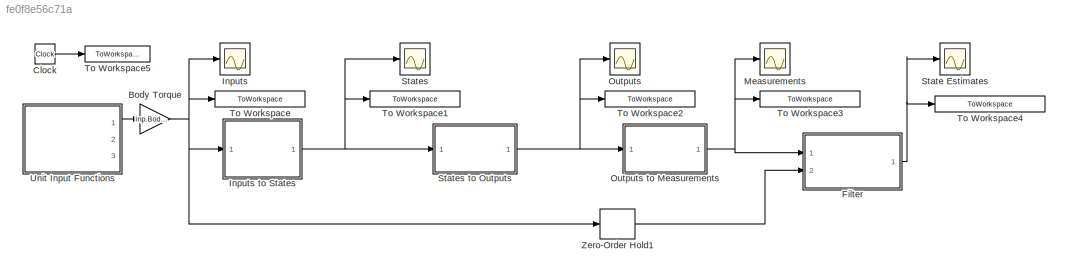
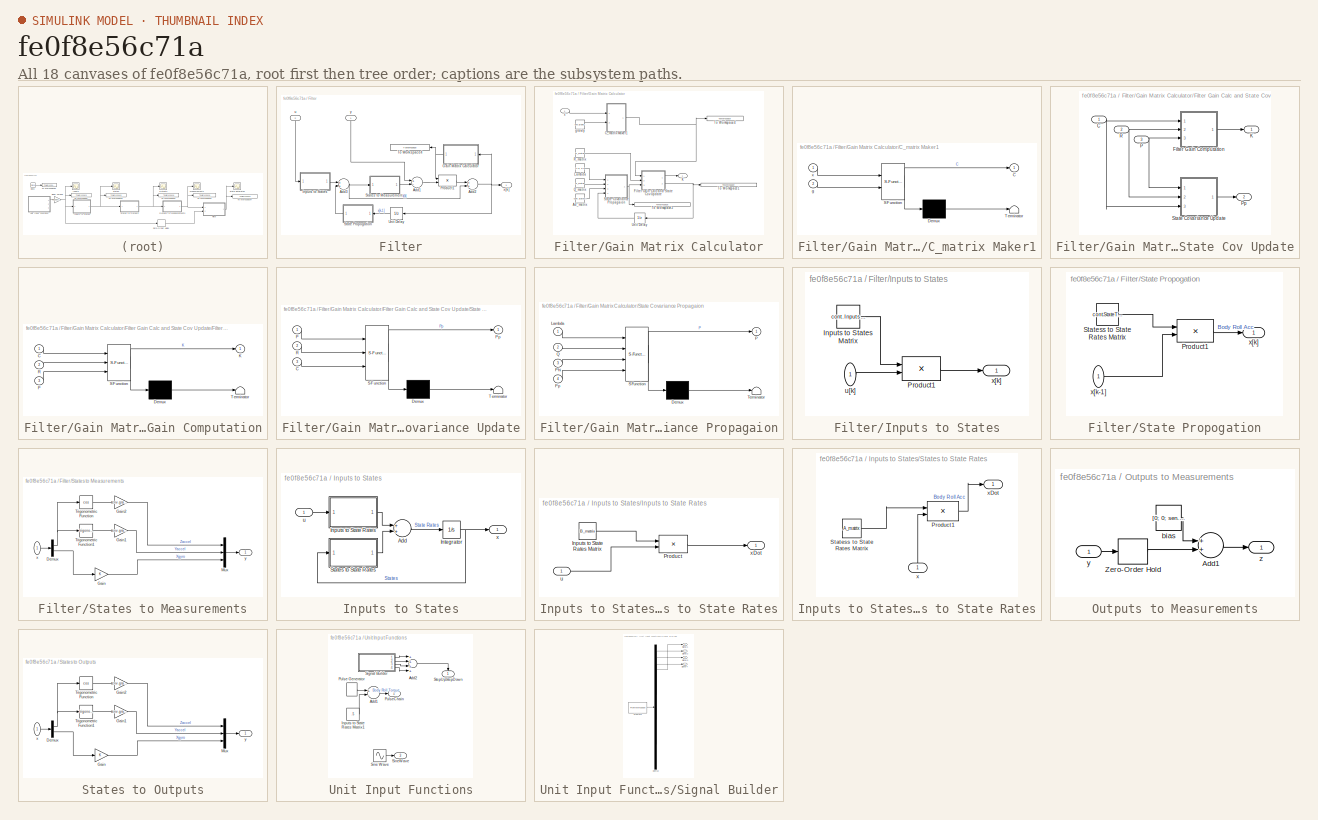
[diagram: thumbnail index - all 18 canvases of the model, root first then tree order]
MODEL slx_fe0f8e56c71a
KIND model
BLOCK [Gain] Body Torque
  Gain = inp.BodyRollTorqueMag
  OutDataTypeStr = Inherit: Inherit via internal rule
  ParamDataTypeStr = Inherit: Inherit via internal rule
  SaturateOnIntegerOverflow = off
BLOCK [Clock] Clock
BLOCK [SubSystem] Filter
  FunctionWithSeparateData = off
  MaskHideContents = off
  MinAlgLoopOccurrences = off
  Opaque = off
  Ports = [2, 1]
  PropExecContextOutsideSubsystem = off
  RTWSystemCode = Auto
  RequestExecContextInheritance = off
BLOCK [Sum] Filter/Add1
  InputSameDT = off
  Inputs = +-
  OutDataTypeStr = Inherit: Inherit via internal rule
  Ports = [2, 1]
  SampleTime = cont.LoopPeriod
  SaturateOnIntegerOverflow = off
BLOCK [Sum] Filter/Add2
  InputSameDT = off
  OutDataTypeStr = Inherit: Inherit via internal rule
  Ports = [2, 1]
  SampleTime = cont.LoopPeriod
  SaturateOnIntegerOverflow = off
BLOCK [Sum] Filter/Add3
  InputSameDT = off
  OutDataTypeStr = Inherit: Inherit via internal rule
  Ports = [2, 1]
  SampleTime = cont.LoopPeriod
  SaturateOnIntegerOverflow = off
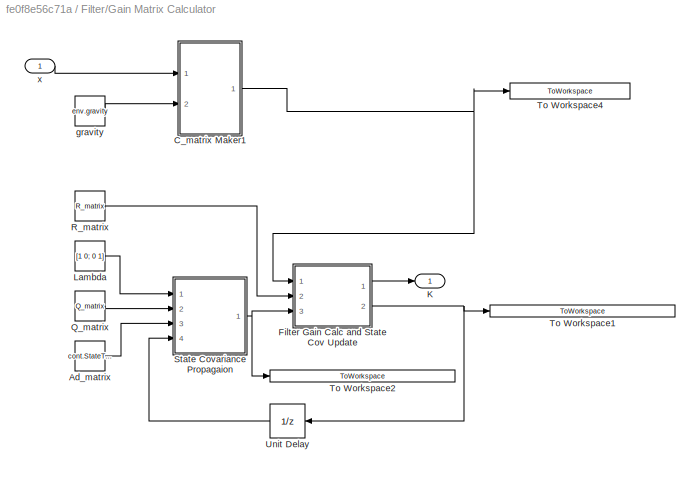
BLOCK [SubSystem] Filter/Gain Matrix Calculator
  FunctionWithSeparateData = off
  MaskHideContents = off
  MinAlgLoopOccurrences = off
  Opaque = off
  Ports = [1, 1]
  PropExecContextOutsideSubsystem = off
  RTWSystemCode = Auto
  RequestExecContextInheritance = off
BLOCK [Constant] Filter/Gain Matrix Calculator/Ad_matrix
  SampleTime = cont.LoopPeriod
  Value = cont.StateToStateRatesDiscrete
BLOCK [SubSystem] Filter/Gain Matrix Calculator/C_matrix Maker1
  ErrorFcn = Stateflow.Translate.translate
  FunctionWithSeparateData = off
  MaskHideContents = off
  MinAlgLoopOccurrences = off
  Opaque = off
  PermitHierarchicalResolution = ExplicitOnly
  Ports = [2, 1]
  PropExecContextOutsideSubsystem = off
  RTWSystemCode = Auto
  RequestExecContextInheritance = off
  SFBlockType = MATLAB Function
  TreatAsAtomicUnit = on
BLOCK [Demux] Filter/Gain Matrix Calculator/C_matrix Maker1/ Demux 
  Outputs = 1
  Ports = [1, 1]
BLOCK [S-Function] Filter/Gain Matrix Calculator/C_matrix Maker1/ SFunction 
  EnableBusSupport = on
  FunctionName = sf_sfun
  PortCounts = [2 2]
  Ports = [2, 2]
  Tag = Stateflow S-Function RollOnlySimulation 4
BLOCK [Terminator] Filter/Gain Matrix Calculator/C_matrix Maker1/ Terminator 
BLOCK [Outport] Filter/Gain Matrix Calculator/C_matrix Maker1/C
  IconDisplay = Port number
BLOCK [Inport] Filter/Gain Matrix Calculator/C_matrix Maker1/g
  IconDisplay = Port number
  Port = 2
BLOCK [Inport] Filter/Gain Matrix Calculator/C_matrix Maker1/x
  IconDisplay = Port number
BLOCK [SubSystem] Filter/Gain Matrix Calculator/Filter Gain Calc and State Cov Update
  FunctionWithSeparateData = off
  MaskHideContents = off
  MinAlgLoopOccurrences = off
  Opaque = off
  Ports = [3, 2]
  PropExecContextOutsideSubsystem = off
  RTWSystemCode = Auto
  RequestExecContextInheritance = off
BLOCK [Inport] Filter/Gain Matrix Calculator/Filter Gain Calc and State Cov Update/C
  IconDisplay = Port number
  PortDimensions = [3 2]
BLOCK [SubSystem] Filter/Gain Matrix Calculator/Filter Gain Calc and State Cov Update/Filter Gain Computation
  ErrorFcn = Stateflow.Translate.translate
  FunctionWithSeparateData = off
  MaskHideContents = off
  MinAlgLoopOccurrences = off
  Opaque = off
  PermitHierarchicalResolution = ExplicitOnly
  Ports = [3, 1]
  PropExecContextOutsideSubsystem = off
  RTWSystemCode = Auto
  RequestExecContextInheritance = off
  SFBlockType = MATLAB Function
  TreatAsAtomicUnit = on
BLOCK [Demux] Filter/Gain Matrix Calculator/Filter Gain Calc and State Cov Update/Filter Gain Computation/ Demux 
  Outputs = 1
  Ports = [1, 1]
BLOCK [S-Function] Filter/Gain Matrix Calculator/Filter Gain Calc and State Cov Update/Filter Gain Computation/ SFunction 
  EnableBusSupport = on
  FunctionName = sf_sfun
  PortCounts = [3 2]
  Ports = [3, 2]
  Tag = Stateflow S-Function RollOnlySimulation 2
BLOCK [Terminator] Filter/Gain Matrix Calculator/Filter Gain Calc and State Cov Update/Filter Gain Computation/ Terminator 
BLOCK [Inport] Filter/Gain Matrix Calculator/Filter Gain Calc and State Cov Update/Filter Gain Computation/C
  IconDisplay = Port number
BLOCK [Outport] Filter/Gain Matrix Calculator/Filter Gain Calc and State Cov Update/Filter Gain Computation/K
  IconDisplay = Port number
BLOCK [Inport] Filter/Gain Matrix Calculator/Filter Gain Calc and State Cov Update/Filter Gain Computation/P
  IconDisplay = Port number
  Port = 3
BLOCK [Inport] Filter/Gain Matrix Calculator/Filter Gain Calc and State Cov Update/Filter Gain Computation/R
  IconDisplay = Port number
  Port = 2
BLOCK [Outport] Filter/Gain Matrix Calculator/Filter Gain Calc and State Cov Update/K
  IconDisplay = Port number
BLOCK [Inport] Filter/Gain Matrix Calculator/Filter Gain Calc and State Cov Update/P
  IconDisplay = Port number
  Port = 3
BLOCK [Outport] Filter/Gain Matrix Calculator/Filter Gain Calc and State Cov Update/Pp
  IconDisplay = Port number
  Port = 2
BLOCK [Inport] Filter/Gain Matrix Calculator/Filter Gain Calc and State Cov Update/R
  IconDisplay = Port number
  Port = 2
BLOCK [SubSystem] Filter/Gain Matrix Calculator/Filter Gain Calc and State Cov Update/State Covariance Update
  ErrorFcn = Stateflow.Translate.translate
  FunctionWithSeparateData = off
  MaskHideContents = off
  MinAlgLoopOccurrences = off
  Opaque = off
  PermitHierarchicalResolution = ExplicitOnly
  Ports = [3, 1]
  PropExecContextOutsideSubsystem = off
  RTWSystemCode = Auto
  RequestExecContextInheritance = off
  SFBlockType = MATLAB Function
  TreatAsAtomicUnit = on
BLOCK [Demux] Filter/Gain Matrix Calculator/Filter Gain Calc and State Cov Update/State Covariance Update/ Demux 
  Outputs = 1
  Ports = [1, 1]
BLOCK [S-Function] Filter/Gain Matrix Calculator/Filter Gain Calc and State Cov Update/State Covariance Update/ SFunction 
  EnableBusSupport = on
  FunctionName = sf_sfun
  PortCounts = [3 2]
  Ports = [3, 2]
  Tag = Stateflow S-Function RollOnlySimulation 3
BLOCK [Terminator] Filter/Gain Matrix Calculator/Filter Gain Calc and State Cov Update/State Covariance Update/ Terminator 
BLOCK [Inport] Filter/Gain Matrix Calculator/Filter Gain Calc and State Cov Update/State Covariance Update/C
  IconDisplay = Port number
  Port = 3
BLOCK [Inport] Filter/Gain Matrix Calculator/Filter Gain Calc and State Cov Update/State Covariance Update/P
  IconDisplay = Port number
BLOCK [Outport] Filter/Gain Matrix Calculator/Filter Gain Calc and State Cov Update/State Covariance Update/Pp
  IconDisplay = Port number
BLOCK [Inport] Filter/Gain Matrix Calculator/Filter Gain Calc and State Cov Update/State Covariance Update/R
  IconDisplay = Port number
  Port = 2
BLOCK [Outport] Filter/Gain Matrix Calculator/K
  IconDisplay = Port number
BLOCK [Constant] Filter/Gain Matrix Calculator/Lambda
  SampleTime = cont.LoopPeriod
  Value = [1 0; 0 1]
BLOCK [Constant] Filter/Gain Matrix Calculator/Q_matrix
  SampleTime = cont.LoopPeriod
  Value = Q_matrix
BLOCK [Constant] Filter/Gain Matrix Calculator/R_matrix
  SampleTime = cont.LoopPeriod
  Value = R_matrix
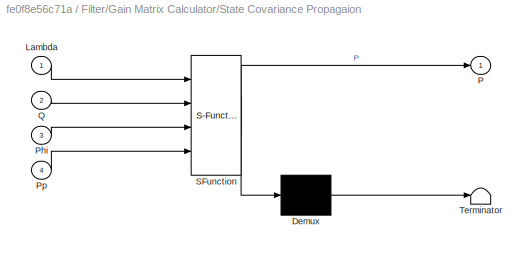
BLOCK [SubSystem] Filter/Gain Matrix Calculator/State Covariance Propagaion
  ErrorFcn = Stateflow.Translate.translate
  FunctionWithSeparateData = off
  MaskHideContents = off
  MinAlgLoopOccurrences = off
  Opaque = off
  PermitHierarchicalResolution = ExplicitOnly
  Ports = [4, 1]
  PropExecContextOutsideSubsystem = off
  RTWSystemCode = Auto
  RequestExecContextInheritance = off
  SFBlockType = MATLAB Function
  TreatAsAtomicUnit = on
BLOCK [Demux] Filter/Gain Matrix Calculator/State Covariance Propagaion/ Demux 
  Outputs = 1
  Ports = [1, 1]
BLOCK [S-Function] Filter/Gain Matrix Calculator/State Covariance Propagaion/ SFunction 
  EnableBusSupport = on
  FunctionName = sf_sfun
  PortCounts = [4 2]
  Ports = [4, 2]
  Tag = Stateflow S-Function RollOnlySimulation 1
BLOCK [Terminator] Filter/Gain Matrix Calculator/State Covariance Propagaion/ Terminator 
BLOCK [Inport] Filter/Gain Matrix Calculator/State Covariance Propagaion/Lambda
  IconDisplay = Port number
BLOCK [Outport] Filter/Gain Matrix Calculator/State Covariance Propagaion/P
  IconDisplay = Port number
BLOCK [Inport] Filter/Gain Matrix Calculator/State Covariance Propagaion/Phi
  IconDisplay = Port number
  Port = 3
BLOCK [Inport] Filter/Gain Matrix Calculator/State Covariance Propagaion/Pp
  IconDisplay = Port number
  Port = 4
BLOCK [Inport] Filter/Gain Matrix Calculator/State Covariance Propagaion/Q
  IconDisplay = Port number
  Port = 2
BLOCK [ToWorkspace] Filter/Gain Matrix Calculator/To Workspace1
  MaxDataPoints = inf
  Ports = [1]
  SampleTime = -1
  VariableName = out_UpdatedStateCovarianceMatrix
BLOCK [ToWorkspace] Filter/Gain Matrix Calculator/To Workspace2
  MaxDataPoints = inf
  Ports = [1]
  SampleTime = -1
  VariableName = out_PropagatedStateCovarianceMatrix
BLOCK [ToWorkspace] Filter/Gain Matrix Calculator/To Workspace4
  MaxDataPoints = inf
  Ports = [1]
  SampleTime = -1
  VariableName = out_LinearizedCmatrix
BLOCK [UnitDelay] Filter/Gain Matrix Calculator/Unit Delay
  InitialCondition = [0.001 0; 0 0.001]
  InputProcessing = Elements as channels (sample based)
  SampleTime = cont.LoopPeriod
BLOCK [Constant] Filter/Gain Matrix Calculator/gravity
  SampleTime = cont.LoopPeriod
  Value = env.gravity
BLOCK [Inport] Filter/Gain Matrix Calculator/x
  IconDisplay = Port number
BLOCK [SubSystem] Filter/Inputs to States
  FunctionWithSeparateData = off
  MaskHideContents = off
  MinAlgLoopOccurrences = off
  Opaque = off
  Ports = [1, 1]
  PropExecContextOutsideSubsystem = off
  RTWSystemCode = Auto
  RequestExecContextInheritance = off
BLOCK [Constant] Filter/Inputs to States/Inputs to States Matrix
  SampleTime = cont.LoopPeriod
  Value = cont.InputsToStatesDiscrete
BLOCK [Product] Filter/Inputs to States/Product1
  InputSameDT = off
  Multiplication = Matrix(*)
  OutDataTypeStr = Inherit: Inherit via internal rule
  Ports = [2, 1]
  SaturateOnIntegerOverflow = off
BLOCK [Inport] Filter/Inputs to States/u[k]
  IconDisplay = Port number
BLOCK [Outport] Filter/Inputs to States/x[k]
  IconDisplay = Port number
BLOCK [Product] Filter/Product1
  InputSameDT = off
  Multiplication = Matrix(*)
  OutDataTypeStr = Inherit: Inherit via internal rule
  Ports = [2, 1]
  SaturateOnIntegerOverflow = off
BLOCK [SubSystem] Filter/State Propogation
  FunctionWithSeparateData = off
  MaskHideContents = off
  MinAlgLoopOccurrences = off
  Opaque = off
  Ports = [1, 1]
  PropExecContextOutsideSubsystem = off
  RTWSystemCode = Auto
  RequestExecContextInheritance = off
BLOCK [Product] Filter/State Propogation/Product1
  InputSameDT = off
  Multiplication = Matrix(*)
  OutDataTypeStr = Inherit: Inherit via internal rule
  Ports = [2, 1]
  SaturateOnIntegerOverflow = off
BLOCK [Constant] Filter/State Propogation/Statess to State Rates Matrix
  SampleTime = cont.LoopPeriod
  Value = cont.StateToStateRatesDiscrete
BLOCK [Inport] Filter/State Propogation/x[k-1]
  IconDisplay = Port number
BLOCK [Outport] Filter/State Propogation/x[k]
  IconDisplay = Port number
BLOCK [SubSystem] Filter/States to Measurements
  FunctionWithSeparateData = off
  MaskHideContents = off
  MinAlgLoopOccurrences = off
  Opaque = off
  Ports = [1, 1]
  PropExecContextOutsideSubsystem = off
  RTWSystemCode = Auto
  RequestExecContextInheritance = off
BLOCK [Demux] Filter/States to Measurements/Demux
  DisplayOption = bar
  Outputs = 2
  Ports = [1, 2]
BLOCK [Gain] Filter/States to Measurements/Gain
  OutDataTypeStr = Inherit: Inherit via internal rule
  ParamDataTypeStr = Inherit: Inherit via internal rule
  SaturateOnIntegerOverflow = off
BLOCK [Gain] Filter/States to Measurements/Gain1
  Gain = env.gravity
  OutDataTypeStr = Inherit: Inherit via internal rule
  ParamDataTypeStr = Inherit: Inherit via internal rule
  SaturateOnIntegerOverflow = off
BLOCK [Gain] Filter/States to Measurements/Gain2
  Gain = env.gravity
  OutDataTypeStr = Inherit: Inherit via internal rule
  ParamDataTypeStr = Inherit: Inherit via internal rule
  SaturateOnIntegerOverflow = off
BLOCK [Mux] Filter/States to Measurements/Mux
  DisplayOption = bar
  Inputs = 3
  Ports = [3, 1]
BLOCK [Trigonometry] Filter/States to Measurements/Trigonometric Function
  Operator = cos
  Ports = [1, 1]
BLOCK [Trigonometry] Filter/States to Measurements/Trigonometric Function1
  Ports = [1, 1]
BLOCK [Inport] Filter/States to Measurements/x
  IconDisplay = Port number
BLOCK [Outport] Filter/States to Measurements/y
  IconDisplay = Port number
BLOCK [ToWorkspace] Filter/To Workspace4
  MaxDataPoints = inf
  Ports = [1]
  SampleTime = -1
  VariableName = out_GainMatrix
BLOCK [UnitDelay] Filter/Unit Delay
  InitialCondition = [0; 0]
  InputProcessing = Elements as channels (sample based)
  SampleTime = cont.LoopPeriod
BLOCK [Inport] Filter/u
  IconDisplay = Port number
  Port = 2
BLOCK [Outport] Filter/x[k]
  IconDisplay = Port number
BLOCK [Inport] Filter/y
  IconDisplay = Port number
BLOCK [Scope] Inputs
  DataFormat = StructureWithTime
  Floating = off
  NumInputPorts = 1
  Ports = [1]
  SampleTime = 0
  SaveName = ScopeData1
  ShowLegends = off
  TimeRange = 10
  YMax = 10
  YMin = -10
BLOCK [SubSystem] Inputs to States
  FunctionWithSeparateData = off
  MaskHideContents = off
  MinAlgLoopOccurrences = off
  Opaque = off
  Ports = [1, 1]
  PropExecContextOutsideSubsystem = off
  RTWSystemCode = Auto
  RequestExecContextInheritance = off
BLOCK [Sum] Inputs to States/Add
  InputSameDT = off
  OutDataTypeStr = Inherit: Inherit via internal rule
  Ports = [2, 1]
  SaturateOnIntegerOverflow = off
BLOCK [SubSystem] Inputs to States/Inputs to State Rates
  FunctionWithSeparateData = off
  MaskHideContents = off
  MinAlgLoopOccurrences = off
  Opaque = off
  Ports = [1, 1]
  PropExecContextOutsideSubsystem = off
  RTWSystemCode = Auto
  RequestExecContextInheritance = off
BLOCK [Constant] Inputs to States/Inputs to State Rates/Inputs to State Rates Matrix
  Value = B_matrix
BLOCK [Product] Inputs to States/Inputs to State Rates/Product
  InputSameDT = off
  Multiplication = Matrix(*)
  OutDataTypeStr = Inherit: Inherit via internal rule
  Ports = [2, 1]
  SaturateOnIntegerOverflow = off
BLOCK [Inport] Inputs to States/Inputs to State Rates/u
  IconDisplay = Port number
BLOCK [Outport] Inputs to States/Inputs to State Rates/xDot
  IconDisplay = Port number
BLOCK [Integrator] Inputs to States/Integrator
  InitialCondition = [0; 0]
  Ports = [1, 1]
BLOCK [SubSystem] Inputs to States/States to State Rates
  FunctionWithSeparateData = off
  MaskHideContents = off
  MinAlgLoopOccurrences = off
  Opaque = off
  Ports = [1, 1]
  PropExecContextOutsideSubsystem = off
  RTWSystemCode = Auto
  RequestExecContextInheritance = off
BLOCK [Product] Inputs to States/States to State Rates/Product1
  InputSameDT = off
  Multiplication = Matrix(*)
  OutDataTypeStr = Inherit: Inherit via internal rule
  Ports = [2, 1]
  SaturateOnIntegerOverflow = off
BLOCK [Constant] Inputs to States/States to State Rates/Statess to State Rates Matrix
  Value = A_matrix
BLOCK [Inport] Inputs to States/States to State Rates/x
  IconDisplay = Port number
BLOCK [Outport] Inputs to States/States to State Rates/xDot
  IconDisplay = Port number
BLOCK [Inport] Inputs to States/u
  IconDisplay = Port number
BLOCK [Outport] Inputs to States/x
  IconDisplay = Port number
BLOCK [Scope] Measurements
  DataFormat = StructureWithTime
  Floating = off
  NumInputPorts = 1
  Ports = [1]
  SampleTime = 0
  SaveName = ScopeData4
  ShowLegends = off
  TimeRange = 10
  YMax = 10
  YMin = -2
BLOCK [Scope] Outputs
  DataFormat = StructureWithTime
  Floating = off
  NumInputPorts = 1
  Ports = [1]
  SampleTime = 0
  SaveName = ScopeData2
  ShowLegends = off
  TimeRange = 10
  YMax = 10
  YMin = -2
BLOCK [SubSystem] Outputs to Measurements
  FunctionWithSeparateData = off
  MaskHideContents = off
  MinAlgLoopOccurrences = off
  Opaque = off
  Ports = [1, 1]
  PropExecContextOutsideSubsystem = off
  RTWSystemCode = Auto
  RequestExecContextInheritance = off
BLOCK [Sum] Outputs to Measurements/Add1
  InputSameDT = off
  OutDataTypeStr = Inherit: Inherit via internal rule
  Ports = [2, 1]
  SaturateOnIntegerOverflow = off
BLOCK [ZeroOrderHold] Outputs to Measurements/Zero-Order Hold
  SampleTime = cont.LoopPeriod
BLOCK [Constant] Outputs to Measurements/bias
  SampleTime = cont.LoopPeriod
  Value = [0; 0; sen.gx.bias]
BLOCK [Inport] Outputs to Measurements/y
  IconDisplay = Port number
BLOCK [Outport] Outputs to Measurements/z
  IconDisplay = Port number
BLOCK [Scope] State Estimates
  DataFormat = StructureWithTime
  Floating = off
  NumInputPorts = 1
  Ports = [1]
  SampleTime = 0
  SaveName = ScopeData3
  ShowLegends = off
  TimeRange = 10
  YMax = 0.6000000000000001
  YMin = -0.8
BLOCK [Scope] States
  DataFormat = StructureWithTime
  Floating = off
  NumInputPorts = 1
  Ports = [1]
  SampleTime = 0
  ShowLegends = off
  TimeRange = 10
  YMax = 0.5
  YMin = -0.5
BLOCK [SubSystem] States to Outputs
  FunctionWithSeparateData = off
  MaskHideContents = off
  MinAlgLoopOccurrences = off
  Opaque = off
  Ports = [1, 1]
  PropExecContextOutsideSubsystem = off
  RTWSystemCode = Auto
  RequestExecContextInheritance = off
BLOCK [Demux] States to Outputs/Demux
  DisplayOption = bar
  Outputs = 2
  Ports = [1, 2]
BLOCK [Gain] States to Outputs/Gain
  OutDataTypeStr = Inherit: Inherit via internal rule
  ParamDataTypeStr = Inherit: Inherit via internal rule
  SaturateOnIntegerOverflow = off
BLOCK [Gain] States to Outputs/Gain1
  Gain = env.gravity
  OutDataTypeStr = Inherit: Inherit via internal rule
  ParamDataTypeStr = Inherit: Inherit via internal rule
  SaturateOnIntegerOverflow = off
BLOCK [Gain] States to Outputs/Gain2
  Gain = env.gravity
  OutDataTypeStr = Inherit: Inherit via internal rule
  ParamDataTypeStr = Inherit: Inherit via internal rule
  SaturateOnIntegerOverflow = off
BLOCK [Mux] States to Outputs/Mux
  DisplayOption = bar
  Inputs = 3
  Ports = [3, 1]
BLOCK [Trigonometry] States to Outputs/Trigonometric Function
  Operator = cos
  Ports = [1, 1]
BLOCK [Trigonometry] States to Outputs/Trigonometric Function1
  Ports = [1, 1]
BLOCK [Inport] States to Outputs/x
  IconDisplay = Port number
BLOCK [Outport] States to Outputs/y
  IconDisplay = Port number
BLOCK [ToWorkspace] To Workspace
  MaxDataPoints = inf
  Ports = [1]
  SampleTime = cont.LoopPeriod
  VariableName = out_Inputs
BLOCK [ToWorkspace] To Workspace1
  MaxDataPoints = inf
  Ports = [1]
  SampleTime = cont.LoopPeriod
  VariableName = out_States
BLOCK [ToWorkspace] To Workspace2
  MaxDataPoints = inf
  Ports = [1]
  SampleTime = cont.LoopPeriod
  VariableName = out_Outputs
BLOCK [ToWorkspace] To Workspace3
  MaxDataPoints = inf
  Ports = [1]
  SampleTime = -1
  VariableName = out_Measurements
BLOCK [ToWorkspace] To Workspace4
  MaxDataPoints = inf
  Ports = [1]
  SampleTime = -1
  VariableName = out_StateEstimates
BLOCK [ToWorkspace] To Workspace5
  MaxDataPoints = inf
  Ports = [1]
  SampleTime = cont.LoopPeriod
  VariableName = out_Time
BLOCK [SubSystem] Unit Input Functions
  FunctionWithSeparateData = off
  MaskHideContents = off
  MinAlgLoopOccurrences = off
  Opaque = off
  Ports = [0, 3]
  PropExecContextOutsideSubsystem = off
  RTWSystemCode = Auto
  RequestExecContextInheritance = off
BLOCK [Sum] Unit Input Functions/Add1
  InputSameDT = off
  Inputs = +-
  OutDataTypeStr = Inherit: Inherit via internal rule
  Ports = [2, 1]
  SaturateOnIntegerOverflow = off
BLOCK [Sum] Unit Input Functions/Add2
  InputSameDT = off
  Inputs = ++++
  OutDataTypeStr = Inherit: Inherit via internal rule
  Ports = [4, 1]
  SaturateOnIntegerOverflow = off
BLOCK [Constant] Unit Input Functions/Inputs to State Rates Matrix1
  SampleTime = cont.LoopPeriod
  Value = .5
BLOCK [DiscretePulseGenerator] Unit Input Functions/Pulse Generator
  Period = 10
  Ports = [0, 1]
  PulseType = Time based
  PulseWidth = 50
BLOCK [Outport] Unit Input Functions/PulseChain
  IconDisplay = Port number
  Port = 2
BLOCK [SubSystem] Unit Input Functions/Signal Builder
  ClipboardFcn = sigbuilder_block('clipboard');
  CloseFcn = sigbuilder_block('close');
  ContinueFcn = sigbuilder_block('continue');
  CopyFcn = sigbuilder_block('copy');
  DeleteFcn = sigbuilder_block('delete');
  FunctionWithSeparateData = off
  LoadFcn = sigbuilder_block('load');
  MaskHideContents = on
  MinAlgLoopOccurrences = off
  ModelCloseFcn = sigbuilder_block('modelClose');
  NameChangeFcn = sigbuilder_block('namechange');
  Opaque = off
  OpenFcn = sigbuilder_block('open',[406.5 147 550.5 399.75 ]);
  PauseFcn = sigbuilder_block('pause');
  Ports = [0, 4]
  PreSaveFcn = sigbuilder_block('preSave');
  PropExecContextOutsideSubsystem = off
  RTWSystemCode = Auto
  RequestExecContextInheritance = off
  StartFcn = sigbuilder_block('start');
  StopFcn = sigbuilder_block('stop');
  Tag = STV Subsys
BLOCK [Demux] Unit Input Functions/Signal Builder/Demux
  Ports = [1, 4]
  Tag = STV Demux
BLOCK [FromWorkspace] Unit Input Functions/Signal Builder/FromWs
  SampleTime = 0
  Tag = STV FromWs
  VariableName = tuvar
  ZeroCross = on
BLOCK [Outport] Unit Input Functions/Signal Builder/Signal 1
  IconDisplay = Port number
  Tag = STV Outport
BLOCK [Outport] Unit Input Functions/Signal Builder/Signal 2
  IconDisplay = Port number
  Port = 2
  Tag = STV Outport
BLOCK [Outport] Unit Input Functions/Signal Builder/Signal 3
  IconDisplay = Port number
  Port = 3
  Tag = STV Outport
BLOCK [Outport] Unit Input Functions/Signal Builder/Signal 4
  IconDisplay = Port number
  Port = 4
  Tag = STV Outport
BLOCK [Sin] Unit Input Functions/Sine Wave
  Ports = [0, 1]
  SampleTime = 0
BLOCK [Outport] Unit Input Functions/SineWave
  IconDisplay = Port number
  Port = 3
BLOCK [Outport] Unit Input Functions/StepUpStepDown
  IconDisplay = Port number
BLOCK [ZeroOrderHold] Zero-Order Hold1
  SampleTime = cont.LoopPeriod
NET Body Torque:1 -> Inputs to States:1, Inputs:1, To Workspace:1, Zero-Order Hold1:1
LINE Clock:1 -> To Workspace5:1
LINE Filter/Add1:1 -> Filter/Product1:2
NET Filter/Add2:1 -> Filter/Gain Matrix Calculator:1, Filter/Unit Delay:1, Filter/x[k]:1
NET Filter/Add3:1 -> Filter/Add2:2, Filter/States to Measurements:1
LINE Filter/Gain Matrix Calculator/Ad_matrix:1 -> Filter/Gain Matrix Calculator/State Covariance Propagaion:3
NET Filter/Gain Matrix Calculator/C_matrix Maker1:1 -> Filter/Gain Matrix Calculator/Filter Gain Calc and State Cov Update:1, Filter/Gain Matrix Calculator/To Workspace4:1
NET Filter/Gain Matrix Calculator/Filter Gain Calc and State Cov Update/C:1 -> Filter/Gain Matrix Calculator/Filter Gain Calc and State Cov Update/Filter Gain Computation:1, Filter/Gain Matrix Calculator/Filter Gain Calc and State Cov Update/State Covariance Update:3
LINE Filter/Gain Matrix Calculator/Filter Gain Calc and State Cov Update/Filter Gain Computation:1 -> Filter/Gain Matrix Calculator/Filter Gain Calc and State Cov Update/K:1
NET Filter/Gain Matrix Calculator/Filter Gain Calc and State Cov Update/P:1 -> Filter/Gain Matrix Calculator/Filter Gain Calc and State Cov Update/Filter Gain Computation:3, Filter/Gain Matrix Calculator/Filter Gain Calc and State Cov Update/State Covariance Update:1
NET Filter/Gain Matrix Calculator/Filter Gain Calc and State Cov Update/R:1 -> Filter/Gain Matrix Calculator/Filter Gain Calc and State Cov Update/Filter Gain Computation:2, Filter/Gain Matrix Calculator/Filter Gain Calc and State Cov Update/State Covariance Update:2
LINE Filter/Gain Matrix Calculator/Filter Gain Calc and State Cov Update/State Covariance Update:1 -> Filter/Gain Matrix Calculator/Filter Gain Calc and State Cov Update/Pp:1
LINE Filter/Gain Matrix Calculator/Filter Gain Calc and State Cov Update:1 -> Filter/Gain Matrix Calculator/K:1
NET Filter/Gain Matrix Calculator/Filter Gain Calc and State Cov Update:2 -> Filter/Gain Matrix Calculator/To Workspace1:1, Filter/Gain Matrix Calculator/Unit Delay:1
LINE Filter/Gain Matrix Calculator/Lambda:1 -> Filter/Gain Matrix Calculator/State Covariance Propagaion:1
LINE Filter/Gain Matrix Calculator/Q_matrix:1 -> Filter/Gain Matrix Calculator/State Covariance Propagaion:2
LINE Filter/Gain Matrix Calculator/R_matrix:1 -> Filter/Gain Matrix Calculator/Filter Gain Calc and State Cov Update:2
NET Filter/Gain Matrix Calculator/State Covariance Propagaion:1 -> Filter/Gain Matrix Calculator/Filter Gain Calc and State Cov Update:3, Filter/Gain Matrix Calculator/To Workspace2:1
LINE Filter/Gain Matrix Calculator/Unit Delay:1 -> Filter/Gain Matrix Calculator/State Covariance Propagaion:4
LINE Filter/Gain Matrix Calculator/gravity:1 -> Filter/Gain Matrix Calculator/C_matrix Maker1:2
LINE Filter/Gain Matrix Calculator/x:1 -> Filter/Gain Matrix Calculator/C_matrix Maker1:1
NET Filter/Gain Matrix Calculator:1 -> Filter/Product1:1, Filter/To Workspace4:1
LINE Filter/Inputs to States/Inputs to States Matrix:1 -> Filter/Inputs to States/Product1:1
LINE Filter/Inputs to States/Product1:1 -> Filter/Inputs to States/x[k]:1
LINE Filter/Inputs to States/u[k]:1 -> Filter/Inputs to States/Product1:2
LINE Filter/Inputs to States:1 -> Filter/Add3:1
LINE Filter/Product1:1 -> Filter/Add2:1
LINE Filter/State Propogation/Product1:1 -> Filter/State Propogation/x[k]:1
LINE Filter/State Propogation/Statess to State Rates Matrix:1 -> Filter/State Propogation/Product1:1
LINE Filter/State Propogation/x[k-1]:1 -> Filter/State Propogation/Product1:2
LINE Filter/State Propogation:1 -> Filter/Add3:2
NET Filter/States to Measurements/Demux:1 -> Filter/States to Measurements/Trigonometric Function1:1, Filter/States to Measurements/Trigonometric Function:1
LINE Filter/States to Measurements/Demux:2 -> Filter/States to Measurements/Gain:1
LINE Filter/States to Measurements/Gain1:1 -> Filter/States to Measurements/Mux:2
LINE Filter/States to Measurements/Gain2:1 -> Filter/States to Measurements/Mux:1
LINE Filter/States to Measurements/Gain:1 -> Filter/States to Measurements/Mux:3
LINE Filter/States to Measurements/Mux:1 -> Filter/States to Measurements/y:1
LINE Filter/States to Measurements/Trigonometric Function1:1 -> Filter/States to Measurements/Gain1:1
LINE Filter/States to Measurements/Trigonometric Function:1 -> Filter/States to Measurements/Gain2:1
LINE Filter/States to Measurements/x:1 -> Filter/States to Measurements/Demux:1
LINE Filter/States to Measurements:1 -> Filter/Add1:2
LINE Filter/Unit Delay:1 -> Filter/State Propogation:1
LINE Filter/u:1 -> Filter/Inputs to States:1
LINE Filter/y:1 -> Filter/Add1:1
NET Filter:1 -> State Estimates:1, To Workspace4:1
LINE Inputs to States/Add:1 -> Inputs to States/Integrator:1
LINE Inputs to States/Inputs to State Rates/Inputs to State Rates Matrix:1 -> Inputs to States/Inputs to State Rates/Product:1
LINE Inputs to States/Inputs to State Rates/Product:1 -> Inputs to States/Inputs to State Rates/xDot:1
LINE Inputs to States/Inputs to State Rates/u:1 -> Inputs to States/Inputs to State Rates/Product:2
LINE Inputs to States/Inputs to State Rates:1 -> Inputs to States/Add:1
NET Inputs to States/Integrator:1 -> Inputs to States/States to State Rates:1, Inputs to States/x:1
LINE Inputs to States/States to State Rates/Product1:1 -> Inputs to States/States to State Rates/xDot:1
LINE Inputs to States/States to State Rates/Statess to State Rates Matrix:1 -> Inputs to States/States to State Rates/Product1:1
LINE Inputs to States/States to State Rates/x:1 -> Inputs to States/States to State Rates/Product1:2
LINE Inputs to States/States to State Rates:1 -> Inputs to States/Add:2
LINE Inputs to States/u:1 -> Inputs to States/Inputs to State Rates:1
NET Inputs to States:1 -> States to Outputs:1, States:1, To Workspace1:1
LINE Outputs to Measurements/Add1:1 -> Outputs to Measurements/z:1
LINE Outputs to Measurements/Zero-Order Hold:1 -> Outputs to Measurements/Add1:2
LINE Outputs to Measurements/bias:1 -> Outputs to Measurements/Add1:1
LINE Outputs to Measurements/y:1 -> Outputs to Measurements/Zero-Order Hold:1
NET Outputs to Measurements:1 -> Filter:1, Measurements:1, To Workspace3:1
NET States to Outputs/Demux:1 -> States to Outputs/Trigonometric Function1:1, States to Outputs/Trigonometric Function:1
LINE States to Outputs/Demux:2 -> States to Outputs/Gain:1
LINE States to Outputs/Gain1:1 -> States to Outputs/Mux:2
LINE States to Outputs/Gain2:1 -> States to Outputs/Mux:1
LINE States to Outputs/Gain:1 -> States to Outputs/Mux:3
LINE States to Outputs/Mux:1 -> States to Outputs/y:1
LINE States to Outputs/Trigonometric Function1:1 -> States to Outputs/Gain1:1
LINE States to Outputs/Trigonometric Function:1 -> States to Outputs/Gain2:1
LINE States to Outputs/x:1 -> States to Outputs/Demux:1
NET States to Outputs:1 -> Outputs to Measurements:1, Outputs:1, To Workspace2:1
LINE Unit Input Functions/Add1:1 -> Unit Input Functions/PulseChain:1
LINE Unit Input Functions/Add2:1 -> Unit Input Functions/StepUpStepDown:1
LINE Unit Input Functions/Inputs to State Rates Matrix1:1 -> Unit Input Functions/Add1:2
LINE Unit Input Functions/Pulse Generator:1 -> Unit Input Functions/Add1:1
LINE Unit Input Functions/Signal Builder:1 -> Unit Input Functions/Add2:1
LINE Unit Input Functions/Signal Builder:2 -> Unit Input Functions/Add2:2
LINE Unit Input Functions/Signal Builder:3 -> Unit Input Functions/Add2:3
LINE Unit Input Functions/Signal Builder:4 -> Unit Input Functions/Add2:4
LINE Unit Input Functions/Sine Wave:1 -> Unit Input Functions/SineWave:1
LINE Unit Input Functions:1 -> Body Torque:1
LINE Zero-Order Hold1:1 -> Filter:2
note: NET lines group one-source signal fan-out (src -> all destinations, sorted); 1:1 wires keep LINE
